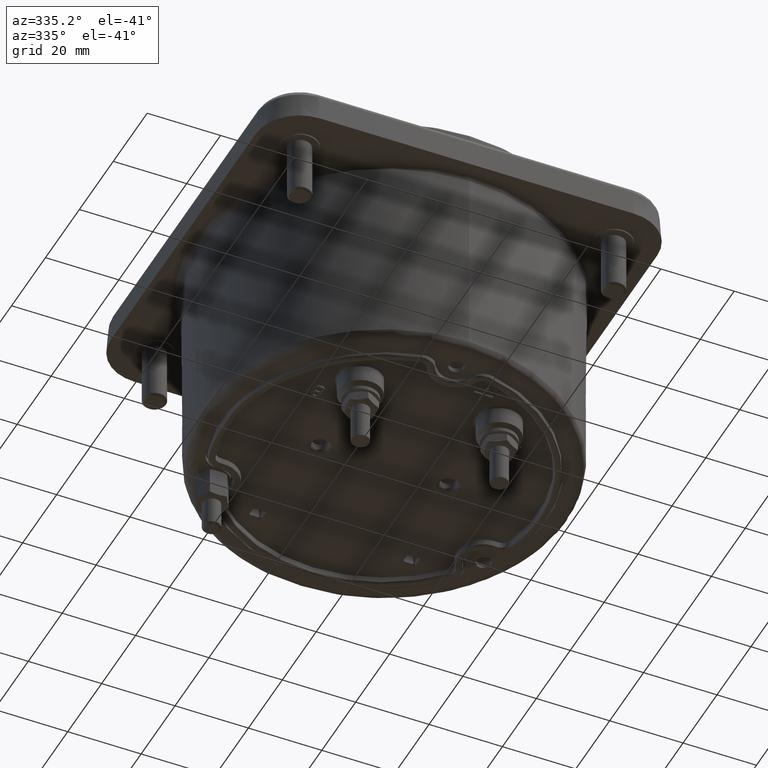
[diagram: clean part render]
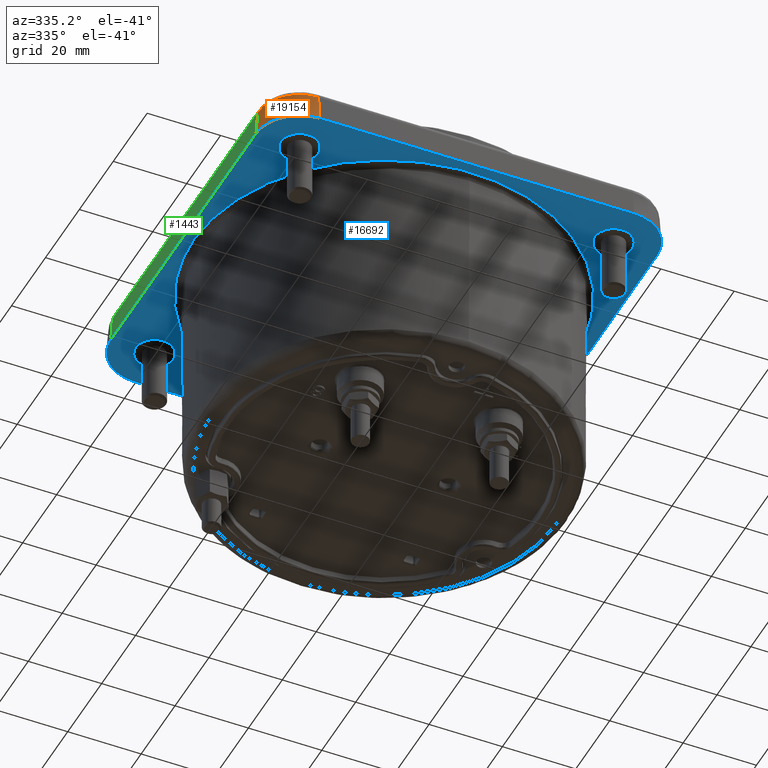
[diagram: same view with three faces highlighted in distinct colors, each labeled with its STEP entity id]
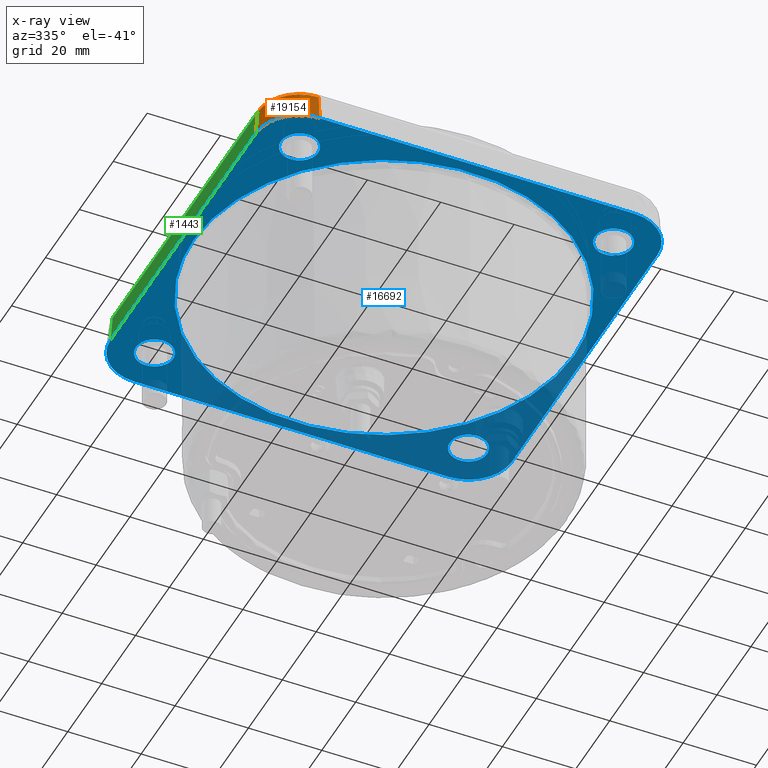
[diagram: x-ray of the same camera — body ghosted, the three highlighted faces saturated]
A machine part, auxiliary view with three faces highlighted in distinct colors.
The next image is the same camera in x-ray (body ghosted, the three faces saturated) — at least one of them is partly hidden behind the body in this view.
Their STEP definitions:

[orange] entity #19154 — the highlighted conical surface has half-angle 4 deg.
#430 = CIRCLE ( 'NONE', #16518, 0.4464672283284528143 ) ;
#493 = DIRECTION ( 'NONE',  ( 0.000000000000000000, 0.000000000000000000, -1.000000000000000000 ) ) ;
#980 = VECTOR ( 'NONE', #9310, 39.37007874015748854 ) ;
#2154 = CARTESIAN_POINT ( 'NONE',  ( -2.153543305989007894, -1.687007875265127854, 2.070110236220472189 ) ) ;
#2620 = CARTESIAN_POINT ( 'NONE',  ( -2.153543305987531298, -1.687007875416897562, 2.070110236241590407 ) ) ;
#2963 = CONICAL_SURFACE ( 'NONE', #10615, 0.4665354330708661457, 0.06981316999999953588 ) ;
#3104 = ORIENTED_EDGE ( 'NONE', *, *, #13460, .F. ) ;
#4126 = EDGE_CURVE ( 'NONE', #13218, #7050, #17322, .T. ) ;
#4483 = CARTESIAN_POINT ( 'NONE',  ( -1.687007872918141693, -1.687007875113358368, 2.357098934942082558 ) ) ;
#4894 = ORIENTED_EDGE ( 'NONE', *, *, #13801, .T. ) ;
#5422 = DIRECTION ( 'NONE',  ( -1.000000000000000000, 0.000000000000000000, 0.000000000000000000 ) ) ;
#5802 = DIRECTION ( 'NONE',  ( 0.06975647374412530244, 0.000000000000000000, 0.9975640502598241977 ) ) ;
#6881 = EDGE_CURVE ( 'NONE', #16478, #10621, #430, .T. ) ;
#7050 = VERTEX_POINT ( 'NONE', #2154 ) ;
#7875 = AXIS2_PLACEMENT_3D ( 'NONE', #20991, #17705, #10652 ) ;
#8686 = FACE_OUTER_BOUND ( 'NONE', #16258, .T. ) ;
#9310 = DIRECTION ( 'NONE',  ( -4.538536330175089566E-11, 0.06975647366454637566, 0.9975640502653888575 ) ) ;
#10615 = AXIS2_PLACEMENT_3D ( 'NONE', #20428, #493, #5422 ) ;
#10621 = VERTEX_POINT ( 'NONE', #15316 ) ;
#10652 = DIRECTION ( 'NONE',  ( -1.000000000000000000, 0.000000000000000000, 0.000000000000000000 ) ) ;
#11122 = DIRECTION ( 'NONE',  ( 0.000000000000000000, 0.000000000000000000, -1.000000000000000000 ) ) ;
#12692 = ORIENTED_EDGE ( 'NONE', *, *, #4126, .F. ) ;
#12912 = LINE ( 'NONE', #15889, #980 ) ;
#13019 = CARTESIAN_POINT ( 'NONE',  ( -1.687007872766371985, -2.153543307086614345, 2.070110236220472189 ) ) ;
#13218 = VERTEX_POINT ( 'NONE', #13019 ) ;
#13460 = EDGE_CURVE ( 'NONE', #7050, #10621, #20707, .T. ) ;
#13801 = EDGE_CURVE ( 'NONE', #13218, #16478, #12912, .T. ) ;
#14308 = CARTESIAN_POINT ( 'NONE',  ( -1.687007872627659388, -2.133475103427692865, 2.357098934979472649 ) ) ;
#15316 = CARTESIAN_POINT ( 'NONE',  ( -2.133475101229425075, -1.687007875410368118, 2.357098934940882184 ) ) ;
#15612 = ORIENTED_EDGE ( 'NONE', *, *, #6881, .T. ) ;
#15747 = DIRECTION ( 'NONE',  ( 6.506258816232933613E-10, -1.000000000000000000, -1.223761933834266947E-15 ) ) ;
#15889 = CARTESIAN_POINT ( 'NONE',  ( -1.687007872614602277, -2.153543308184224347, 2.070110236220472189 ) ) ;
#16258 = EDGE_LOOP ( 'NONE', ( #3104, #12692, #4894, #15612 ) ) ;
#16478 = VERTEX_POINT ( 'NONE', #14308 ) ;
#16518 = AXIS2_PLACEMENT_3D ( 'NONE', #4483, #11122, #15747 ) ;
#17322 = CIRCLE ( 'NONE', #7875, 0.4665354330708661457 ) ;
#17705 = DIRECTION ( 'NONE',  ( 0.000000000000000000, 0.000000000000000000, -1.000000000000000000 ) ) ;
#18432 = VECTOR ( 'NONE', #5802, 39.37007874015748854 ) ;
#19154 = ADVANCED_FACE ( 'NONE', ( #8686 ), #2963, .T. ) ;
#20428 = CARTESIAN_POINT ( 'NONE',  ( -1.687007872918141693, -1.687007875113358368, 2.070110236220472189 ) ) ;
#20707 = LINE ( 'NONE', #2620, #18432 ) ;
#20991 = CARTESIAN_POINT ( 'NONE',  ( -1.687007872918141693, -1.687007875113358368, 2.070110236220472189 ) ) ;

[blue] entity #16692 — the highlighted planar face has unit normal (0, 0, -1).
#49 = CARTESIAN_POINT ( 'NONE',  ( -2.008598685417853691, 0.3726887875046700493, 2.070110236220472189 ) ) ;
#149 = CARTESIAN_POINT ( 'NONE',  ( -1.896255371955353874, 0.7599903085829402549, 2.070110236220472189 ) ) ;
#249 = CARTESIAN_POINT ( 'NONE',  ( 2.026184992767981807, 0.2639833657178906057, 2.070110236220472189 ) ) ;
#341 = CARTESIAN_POINT ( 'NONE',  ( 1.896255371954573610, -0.7599903085844089690, 2.070110236220472189 ) ) ;
#469 = CARTESIAN_POINT ( 'NONE',  ( 1.711088321330193063, 1.116040419668461237, 2.070110236220472189 ) ) ;
#582 = CARTESIAN_POINT ( 'NONE',  ( 2.008964654954902507, 0.3707111310162305440, 2.070110236220472633 ) ) ;
#617 = ORIENTED_EDGE ( 'NONE', *, *, #10479, .T. ) ;
#644 = CARTESIAN_POINT ( 'NONE',  ( -0.4285437248690475709, -1.997551800392993959, 2.070110236220472189 ) ) ;
#668 = DIRECTION ( 'NONE',  ( 0.000000000000000000, 0.000000000000000000, 1.000000000000000000 ) ) ;
#728 = CARTESIAN_POINT ( 'NONE',  ( -1.885826770557212706, -1.685039371175066858, 2.070110236220472189 ) ) ;
#761 = CARTESIAN_POINT ( 'NONE',  ( -1.718104688078356812, -1.105221622687907246, 2.070110236220472189 ) ) ;
#791 = CARTESIAN_POINT ( 'NONE',  ( -0.3678886186264974101, 2.009483410134052850, 2.070110236220472189 ) ) ;
#872 = CARTESIAN_POINT ( 'NONE',  ( -1.900241300414105661, -0.7499681759423524330, 2.070110236220472189 ) ) ;
#940 = CIRCLE ( 'NONE', #1285, 0.2007874015748031815 ) ;
#981 = CARTESIAN_POINT ( 'NONE',  ( -0.8077928446486398739, -1.876533583577645992, 2.070110236220472189 ) ) ;
#1092 = CARTESIAN_POINT ( 'NONE',  ( -1.060108662982536920, -1.747656180641109946, 2.070110236220472189 ) ) ;
#1185 = CARTESIAN_POINT ( 'NONE',  ( 1.130765448197810219, 1.701402250908114588, 2.070110236220472189 ) ) ;
#1285 = AXIS2_PLACEMENT_3D ( 'NONE', #10965, #17686, #13041 ) ;
#1375 = CARTESIAN_POINT ( 'NONE',  ( -1.092514872299909623, 1.726242185401335227, 2.070110236220472189 ) ) ;
#1408 = CARTESIAN_POINT ( 'NONE',  ( 0.7499681759424581262, -1.900241300414075463, 2.070110236220472189 ) ) ;
#1481 = CARTESIAN_POINT ( 'NONE',  ( -1.110653324257439234, 1.714590005561490216, 2.070110236220472189 ) ) ;
#1483 = AXIS2_PLACEMENT_3D ( 'NONE', #19113, #15813, #16023 ) ;
#1493 = CIRCLE ( 'NONE', #14417, 0.2007874015748031815 ) ;
#1612 = DIRECTION ( 'NONE',  ( 0.000000000000000000, 0.000000000000000000, 1.000000000000000000 ) ) ;
#1660 = CARTESIAN_POINT ( 'NONE',  ( 1.687007875265125856, -2.153543305988999901, 2.070110236220472189 ) ) ;
#1801 = CARTESIAN_POINT ( 'NONE',  ( -1.923832779440136198, 0.6903791625160491385, 2.070110236220472189 ) ) ;
#1812 = CARTESIAN_POINT ( 'NONE',  ( -0.7442685582425531132, 1.902480896312931602, 2.070110236220472189 ) ) ;
#1991 = CARTESIAN_POINT ( 'NONE',  ( 1.494393066037198459, -1.394678649433133799, 2.070110236220472633 ) ) ;
#2006 = CARTESIAN_POINT ( 'NONE',  ( 1.900241300414043266, 0.7499681759425160799, 2.070110236220472189 ) ) ;
#2059 = ORIENTED_EDGE ( 'NONE', *, *, #21451, .T. ) ;
#2097 = CARTESIAN_POINT ( 'NONE',  ( 1.923832779438609863, -0.6903791625240016661, 2.070110236220472189 ) ) ;
#2154 = CARTESIAN_POINT ( 'NONE',  ( -2.153543305989007894, -1.687007875265127854, 2.070110236220472189 ) ) ;
#2205 = CARTESIAN_POINT ( 'NONE',  ( 1.639883210596662311, -1.219175707345041992, 2.070110236220472189 ) ) ;
#2317 = CARTESIAN_POINT ( 'NONE',  ( 1.984978912902296111, -0.4849692473790852554, 2.070110236220471744 ) ) ;
#2385 = CARTESIAN_POINT ( 'NONE',  ( 0.3582853737933025529, -2.011224428577075951, 2.070110236220471744 ) ) ;
#2420 = CARTESIAN_POINT ( 'NONE',  ( 1.852268121428690906, -0.8629098314627251520, 2.070110236220472633 ) ) ;
#2500 = CARTESIAN_POINT ( 'NONE',  ( -1.831287150513315254, -0.9100311596427431704, 2.070110236220472189 ) ) ;
#2548 = LINE ( 'NONE', #7370, #10795 ) ;
#2610 = CARTESIAN_POINT ( 'NONE',  ( -0.9710378116248836733, -1.799681934347626466, 2.070110236220472189 ) ) ;
#2684 = CARTESIAN_POINT ( 'NONE',  ( 1.484251967407606454, 1.685039371175066858, 2.070110236220472189 ) ) ;
#2724 = CARTESIAN_POINT ( 'NONE',  ( -1.996722619072802463, -0.4368693160643514761, 2.070110236220472189 ) ) ;
#2820 = CARTESIAN_POINT ( 'NONE',  ( 0.9710378116155181649, 1.799681934351596846, 2.070110236220472633 ) ) ;
#2839 = CARTESIAN_POINT ( 'NONE',  ( -0.4001849927168594223, -2.003332604841471021, 2.070110236220472189 ) ) ;
#3015 = CARTESIAN_POINT ( 'NONE',  ( -1.701402250908744973, 1.130765448196786371, 2.070110236220473077 ) ) ;
#3023 = CARTESIAN_POINT ( 'NONE',  ( 1.219175707342406101, 1.639883210600492802, 2.070110236220472189 ) ) ;
#3062 = ORIENTED_EDGE ( 'NONE', *, *, #11301, .T. ) ;
#3145 = CARTESIAN_POINT ( 'NONE',  ( 1.105221622687248217, -1.718104688078582853, 2.070110236220472189 ) ) ;
#3159 = CARTESIAN_POINT ( 'NONE',  ( 0.1249387674007510635, 2.042880192836613595, 2.070110236220472189 ) ) ;
#3231 = CARTESIAN_POINT ( 'NONE',  ( -2.007446990985487734, 0.3788520813345559457, 2.070110236220471744 ) ) ;
#3242 = CARTESIAN_POINT ( 'NONE',  ( 0.7559844347400698217, 1.897855857671748803, 2.070110236220472633 ) ) ;
#3344 = CARTESIAN_POINT ( 'NONE',  ( -0.6978737373666035193, 1.920113334218456425, 2.070110236220472633 ) ) ;
#3362 = FACE_OUTER_BOUND ( 'NONE', #15457, .T. ) ;
#3432 = CARTESIAN_POINT ( 'NONE',  ( -1.105221622685764959, 1.718104688079279185, 2.070110236220473077 ) ) ;
#3489 = CARTESIAN_POINT ( 'NONE',  ( -2.018101943887906646, -0.3179150791612647131, 2.070110236220472189 ) ) ;
#3493 = DIRECTION ( 'NONE',  ( 0.000000000000000000, 0.000000000000000000, -1.000000000000000000 ) ) ;
#3539 = CARTESIAN_POINT ( 'NONE',  ( 1.714590005561250186, 1.110653324258058738, 2.070110236220471744 ) ) ;
#3645 = CARTESIAN_POINT ( 'NONE',  ( 1.974016218242611531, 0.5332552053223664768, 2.070110236220472189 ) ) ;
#3742 = CARTESIAN_POINT ( 'NONE',  ( 2.042881469688272222, 1.329156158074610405E-09, 2.070110236220472189 ) ) ;
#3756 = CARTESIAN_POINT ( 'NONE',  ( 1.742263465832802227, 1.066970251324247831, 2.070110236220472189 ) ) ;
#3851 = CARTESIAN_POINT ( 'NONE',  ( 1.675499044561318929, -1.169031679860992323, 2.070110236220473077 ) ) ;
#3866 = CARTESIAN_POINT ( 'NONE',  ( 1.939430170090475691, 0.6433872527954787035, 2.070110236220472189 ) ) ;
#3963 = CARTESIAN_POINT ( 'NONE',  ( 1.799681934345674028, -0.9710378116287806671, 2.070110236220472189 ) ) ;
#3988 = FACE_BOUND ( 'NONE', #13815, .T. ) ;
#4002 = CARTESIAN_POINT ( 'NONE',  ( -2.153543305989007894, -3.543307086614173151, 2.070110236220472189 ) ) ;
#4023 = DIRECTION ( 'NONE',  ( -1.000000000000000000, 0.000000000000000000, 0.000000000000000000 ) ) ;
#4034 = CARTESIAN_POINT ( 'NONE',  ( -2.010010018804857967, -0.3650084123850552142, 2.070110236220472189 ) ) ;
#4055 = ORIENTED_EDGE ( 'NONE', *, *, #5105, .T. ) ;
#4126 = EDGE_CURVE ( 'NONE', #13218, #7050, #17322, .T. ) ;
#4140 = CARTESIAN_POINT ( 'NONE',  ( 0.3698088781557154481, -2.009130903961321213, 2.070110236220472189 ) ) ;
#4208 = VECTOR ( 'NONE', #4023, 39.37007874015748143 ) ;
#4257 = CARTESIAN_POINT ( 'NONE',  ( -1.119690164145946687, -1.708702197063385553, 2.070110236220472189 ) ) ;
#4361 = CARTESIAN_POINT ( 'NONE',  ( -1.130765448198850942, -1.701402250907160463, 2.070110236220472633 ) ) ;
#4480 = CARTESIAN_POINT ( 'NONE',  ( -2.008964654954926488, -0.3707111310161385065, 2.070110236220472189 ) ) ;
#4525 = CARTESIAN_POINT ( 'NONE',  ( 2.042881469688272222, 1.329156158074610405E-09, 2.070110236220472189 ) ) ;
#4565 = CARTESIAN_POINT ( 'NONE',  ( 1.121571604574870262, 1.707467909705373987, 2.070110236220473077 ) ) ;
#4682 = CARTESIAN_POINT ( 'NONE',  ( 0.7249720948608480153, -1.909948963333672145, 2.070110236220472189 ) ) ;
#4694 = CARTESIAN_POINT ( 'NONE',  ( 0.2488762166883521365, 2.031511808131441388, 2.070110236220473077 ) ) ;
#4759 = CARTESIAN_POINT ( 'NONE',  ( -1.564954769524254052, 1.316454797502487839, 2.070110236220473077 ) ) ;
#4789 = CARTESIAN_POINT ( 'NONE',  ( 1.116040419668381967, -1.711088321330239914, 2.070110236220472189 ) ) ;
#4869 = CARTESIAN_POINT ( 'NONE',  ( -1.893845591454620836, 0.7659944184694260638, 2.070110236220473077 ) ) ;
#4899 = CARTESIAN_POINT ( 'NONE',  ( 0.7384850524081502110, -1.904740289654617058, 2.070110236220472633 ) ) ;
#4915 = CARTESIAN_POINT ( 'NONE',  ( 0.3737647796329262584, 2.008398766474830843, 2.070110236220473077 ) ) ;
#4989 = AXIS2_PLACEMENT_3D ( 'NONE', #15632, #20700, #18508 ) ;
#4998 = DIRECTION ( 'NONE',  ( 1.000000000000000000, 0.000000000000000000, 0.000000000000000000 ) ) ;
#5086 = CARTESIAN_POINT ( 'NONE',  ( -1.747656180646432800, 1.060108662972744753, 2.070110236220473077 ) ) ;
#5105 = EDGE_CURVE ( 'NONE', #5115, #6227, #8655, .T. ) ;
#5115 = VERTEX_POINT ( 'NONE', #7357 ) ;
#5389 = CARTESIAN_POINT ( 'NONE',  ( 2.006096597241529889, -0.3859691339164213475, 2.070110236220472189 ) ) ;
#5402 = CARTESIAN_POINT ( 'NONE',  ( 2.013594818917836093, 0.3448347633410340785, 2.070110236220473077 ) ) ;
#5416 = FACE_BOUND ( 'NONE', #16768, .T. ) ;
#5467 = CARTESIAN_POINT ( 'NONE',  ( -2.042881469647618076, -0.06247283608517428810, 2.070110236220472633 ) ) ;
#5479 = CARTESIAN_POINT ( 'NONE',  ( -1.685039368982409691, -1.685039371175066858, 2.070110236220472189 ) ) ;
#5516 = CARTESIAN_POINT ( 'NONE',  ( 1.902480896313037517, 0.7442685582423163027, 2.070110236220472189 ) ) ;
#5529 = DIRECTION ( 'NONE',  ( -1.000000000000000000, 0.000000000000000000, 0.000000000000000000 ) ) ;
#5578 = CARTESIAN_POINT ( 'NONE',  ( -2.038618325398769304, -0.1557935806420024105, 2.070110236220472633 ) ) ;
#5607 = AXIS2_PLACEMENT_3D ( 'NONE', #18623, #3493, #13540 ) ;
#5612 = CARTESIAN_POINT ( 'NONE',  ( 1.564954769513941635, -1.316454797514395869, 2.070110236220472189 ) ) ;
#5654 = DIRECTION ( 'NONE',  ( 0.000000000000000000, 0.000000000000000000, -1.000000000000000000 ) ) ;
#5687 = CARTESIAN_POINT ( 'NONE',  ( 0.06246938569206661462, -2.042882108114909112, 2.070110236220472633 ) ) ;
#5700 = CARTESIAN_POINT ( 'NONE',  ( -1.484251969600267618, 1.685039368982401697, 2.070110236220472189 ) ) ;
#5747 = PLANE ( 'NONE',  #18910 ) ;
#5791 = CARTESIAN_POINT ( 'NONE',  ( -0.2488762166930676978, -2.031511808129802699, 2.070110236220472633 ) ) ;
#5815 = LINE ( 'NONE', #12572, #12304 ) ;
#5818 = VERTEX_POINT ( 'NONE', #2684 ) ;
#5837 = DIRECTION ( 'NONE',  ( 1.000000000000000000, -0.000000000000000000, -0.000000000000000000 ) ) ;
#5896 = CARTESIAN_POINT ( 'NONE',  ( -1.909948963333746308, -0.7249720948604549964, 2.070110236220472189 ) ) ;
#5947 = CARTESIAN_POINT ( 'NONE',  ( -0.2639833657265798772, 2.026184992766906223, 2.070110236220472189 ) ) ;
#6016 = CARTESIAN_POINT ( 'NONE',  ( -1.121571604575167358, -1.707467909705093767, 2.070110236220472633 ) ) ;
#6068 = ORIENTED_EDGE ( 'NONE', *, *, #14568, .T. ) ;
#6124 = CARTESIAN_POINT ( 'NONE',  ( -0.3859691339166563817, -2.006096597241381563, 2.070110236220473077 ) ) ;
#6139 = CARTESIAN_POINT ( 'NONE',  ( 0.3859691339169316060, 2.006096597241254997, 2.070110236220472189 ) ) ;
#6215 = CARTESIAN_POINT ( 'NONE',  ( 1.687007872918133922, 1.687007875113362143, 2.070110236220472189 ) ) ;
#6227 = VERTEX_POINT ( 'NONE', #4525 ) ;
#6330 = CARTESIAN_POINT ( 'NONE',  ( 0.5332552053338290854, -1.974016218238910048, 2.070110236220473077 ) ) ;
#6345 = CARTESIAN_POINT ( 'NONE',  ( 0.3788520813356723305, 2.007446990985192414, 2.070110236220472189 ) ) ;
#6432 = CARTESIAN_POINT ( 'NONE',  ( 1.066970251325741303, -1.742263465831821456, 2.070110236220472189 ) ) ;
#6491 = EDGE_CURVE ( 'NONE', #20010, #20380, #1493, .T. ) ;
#6515 = EDGE_CURVE ( 'NONE', #11952, #17988, #5815, .T. ) ;
#6541 = CARTESIAN_POINT ( 'NONE',  ( 0.4368693160652958873, -1.996722619072617277, 2.070110236220473077 ) ) ;
#6556 = CARTESIAN_POINT ( 'NONE',  ( 0.3757999609763399418, 2.008018959206292475, 2.070110236220472633 ) ) ;
#6622 = CARTESIAN_POINT ( 'NONE',  ( -1.344819891864121653, 1.544248719458508168, 2.070110236220472189 ) ) ;
#6732 = CARTESIAN_POINT ( 'NONE',  ( -2.042881469769566749, 0.1249596658312170094, 2.070110236220472189 ) ) ;
#6816 = EDGE_CURVE ( 'NONE', #11655, #12855, #9521, .T. ) ;
#6836 = CARTESIAN_POINT ( 'NONE',  ( -1.799681934356939239, 0.9710378116077497124, 2.070110236220472189 ) ) ;
#6843 = CARTESIAN_POINT ( 'NONE',  ( 0.7799711020587158927, 1.888159406803889162, 2.070110236220471744 ) ) ;
#6924 = ORIENTED_EDGE ( 'NONE', *, *, #9453, .T. ) ;
#6933 = CARTESIAN_POINT ( 'NONE',  ( 2.011224428577082612, 0.3582853737923294424, 2.070110236220472189 ) ) ;
#7050 = VERTEX_POINT ( 'NONE', #2154 ) ;
#7054 = FACE_BOUND ( 'NONE', #18159, .T. ) ;
#7262 = CARTESIAN_POINT ( 'NONE',  ( 1.900968610835624517, 0.7481225039804052512, 2.070110236220472189 ) ) ;
#7287 = DIRECTION ( 'NONE',  ( -1.000000000000000000, 0.000000000000000000, 0.000000000000000000 ) ) ;
#7323 = CARTESIAN_POINT ( 'NONE',  ( -0.8629098314598024899, -1.852268121430152847, 2.070110236220472189 ) ) ;
#7346 = DIRECTION ( 'NONE',  ( 1.000000000000000000, 0.000000000000000000, 0.000000000000000000 ) ) ;
#7357 = CARTESIAN_POINT ( 'NONE',  ( -2.042881469688264673, -1.329153877629970610E-09, 2.070110236220472189 ) ) ;
#7370 = CARTESIAN_POINT ( 'NONE',  ( 2.305380921159354548E-09, 2.153543305989007894, 2.070110236220472189 ) ) ;
#7430 = CARTESIAN_POINT ( 'NONE',  ( -1.394678649436074336, -1.494393066035612838, 2.070110236220473077 ) ) ;
#7461 = CARTESIAN_POINT ( 'NONE',  ( -0.3707111310161931850, 2.008964654954908724, 2.070110236220472189 ) ) ;
#7501 = CARTESIAN_POINT ( 'NONE',  ( -1.885826772749874092, 1.685039368982401697, 2.070110236220472189 ) ) ;
#7542 = CARTESIAN_POINT ( 'NONE',  ( -2.009130884087158009, -0.3698089855593023056, 2.070110236220472633 ) ) ;
#7618 = VERTEX_POINT ( 'NONE', #14148 ) ;
#7646 = CARTESIAN_POINT ( 'NONE',  ( -0.3726887335863753314, -2.008598695396127454, 2.070110236220472189 ) ) ;
#7760 = CARTESIAN_POINT ( 'NONE',  ( -0.7599903085841351880, -1.896255371954701952, 2.070110236220472633 ) ) ;
#7845 = CARTESIAN_POINT ( 'NONE',  ( 0.8077928446445483690, 1.876533583579392150, 2.070110236220472189 ) ) ;
#7875 = AXIS2_PLACEMENT_3D ( 'NONE', #20991, #17705, #10652 ) ;
#7978 = CARTESIAN_POINT ( 'NONE',  ( 0.4285437248700156299, 1.997551800392516785, 2.070110236220472633 ) ) ;
#8047 = AXIS2_PLACEMENT_3D ( 'NONE', #9578, #19585, #16280 ) ;
#8053 = CARTESIAN_POINT ( 'NONE',  ( 1.143583545518305877, 1.692844864900662660, 2.070110236220472189 ) ) ;
#8077 = CARTESIAN_POINT ( 'NONE',  ( 0.8161558320137728417, -1.874038972725468932, 2.070110236220472189 ) ) ;
#8150 = CARTESIAN_POINT ( 'NONE',  ( -1.897855857671926882, 0.7559844347397906006, 2.070110236220472189 ) ) ;
#8192 = CARTESIAN_POINT ( 'NONE',  ( 0.4849692473822045380, 1.984978912900581927, 2.070110236220472189 ) ) ;
#8272 = CARTESIAN_POINT ( 'NONE',  ( 1.885826770557212706, 1.685039371175066858, 2.070110236220472189 ) ) ;
#8360 = CARTESIAN_POINT ( 'NONE',  ( -2.031513085348501502, 0.2488693151521731151, 2.070110236220472633 ) ) ;
#8371 = CARTESIAN_POINT ( 'NONE',  ( -0.6433872527980785128, 1.939430170089417649, 2.070110236220472189 ) ) ;
#8413 = ORIENTED_EDGE ( 'NONE', *, *, #13470, .T. ) ;
#8467 = CARTESIAN_POINT ( 'NONE',  ( -1.066970251320402019, 1.742263465834327452, 2.070110236220472189 ) ) ;
#8649 = CARTESIAN_POINT ( 'NONE',  ( 1.692844864899470503, -1.143583545519123446, 2.070110236220472189 ) ) ;
#8655 = B_SPLINE_CURVE_WITH_KNOTS ( 'NONE', 3,
 ( #20465, #5467, #5578, #12215, #3489, #10144, #14196, #4034, #10679, #7542, #4480, #2724, #14088, #20916, #10898, #5896, #11120, #9382, #17735, #872, #9156, #2500, #12440, #10786, #15744, #761, #12546, #20697, #17398, #11010, #17620, #7430, #17849, #13981, #19269, #15854, #4361, #16072, #6016, #4257, #1092, #2610, #7323, #981, #12665, #15630, #7760, #19044, #9270, #14425, #21138, #20799, #644, #2839, #6124, #15961, #19383, #17507, #7646, #5791, #14304, #5687, #21024, #12326, #12773, #19497, #2385, #9044, #19159, #4140, #11227, #6541, #6330, #13194, #11646, #4682, #4899, #18158, #11541, #1408, #8077, #9492, #14957, #6432, #18269, #3145, #16608, #18371, #4789, #16996, #10604, #1991, #5612, #2205, #3851, #8649, #8973, #20730, #12023, #13685, #18758, #3963, #2420, #9076, #19079, #12134, #341, #17321, #15663, #2097, #17429, #2317, #15782, #15556, #5389, #10713, #10498, #8863, #17214, #17101, #18650, #3742 ),
 .UNSPECIFIED., .F., .F.,
 ( 4, 1, 1, 1, 1, 1, 1, 2, 2, 1, 1, 1, 1, 1, 2, 2, 1, 1, 1, 1, 1, 2, 2, 2, 1, 1, 1, 1, 1, 2, 2, 1, 1, 1, 1, 1, 2, 2, 1, 1, 1, 1, 1, 1, 2, 2, 2, 1, 1, 1, 1, 1, 1, 2, 2, 1, 1, 1, 1, 1, 2, 2, 1, 1, 1, 1, 1, 2, 2, 2, 1, 1, 1, 1, 1, 2, 2, 1, 1, 1, 1, 1, 2, 2, 1, 1, 1, 1, 1, 1, 2, 2, 4 ),
 ( 0.000000000000000000, 0.01562499999999998959, 0.02343749999999998612, 0.02734374999999998265, 0.02929687499999998612, 0.03027343749999997918, 0.03076171874999997224, 0.03100585937499996877, 0.03124999999999996531, 0.04687499999999943101, 0.05468749999999916039, 0.05859374999999904937, 0.06054687499999899386, 0.06152343749999896610, 0.06201171874999895223, 0.06249999999999893835, 0.07812499999999827915, 0.08593749999999797384, 0.08984374999999782119, 0.09179687499999771017, 0.09277343749999765465, 0.09326171874999764078, 0.09374999999999762690, 0.1249999999999960865, 0.1406249999999953371, 0.1484374999999949485, 0.1523437499999947542, 0.1542968749999946709, 0.1552734374999946709, 0.1557617187499946709, 0.1562499999999946709, 0.1718749999999949762, 0.1796874999999951428, 0.1835937499999952260, 0.1855468749999952538, 0.1865234374999952816, 0.1870117187499952816, 0.1874999999999952816, 0.2031249999999949485, 0.2109374999999948097, 0.2148437499999947542, 0.2167968749999947264, 0.2177734374999947264, 0.2182617187499947264, 0.2185058593749947264, 0.2187499999999947264, 0.2499999999999947264, 0.2656249999999947264, 0.2734374999999947264, 0.2773437499999947264, 0.2792968749999947264, 0.2802734374999947264, 0.2807617187499947264, 0.2810058593749947264, 0.2812499999999947264, 0.2968749999999952260, 0.3046874999999955036, 0.3085937499999956701, 0.3105468749999957256, 0.3115234374999957812, 0.3120117187499957812, 0.3124999999999957812, 0.3281249999999961142, 0.3359374999999962808, 0.3398437499999963363, 0.3417968749999963918, 0.3427734374999963918, 0.3432617187499963918, 0.3437499999999963918, 0.3749999999999966138, 0.3906249999999967248, 0.3984374999999967804, 0.4023437499999967804, 0.4042968749999967804, 0.4052734374999967804, 0.4057617187499967804, 0.4062499999999967804, 0.4218749999999971134, 0.4296874999999972800, 0.4335937499999973910, 0.4355468749999974465, 0.4365234374999975020, 0.4370117187499975020, 0.4374999999999975020, 0.4531249999999980571, 0.4609374999999982792, 0.4648437499999983902, 0.4667968749999984457, 0.4677734374999984457, 0.4682617187499984457, 0.4685058593749984457, 0.4687499999999984457, 0.5000000000000000000 ),
 .UNSPECIFIED. ) ;
#8662 = CARTESIAN_POINT ( 'NONE',  ( 1.874038972726748797, 0.8161558320118241783, 2.070110236220473077 ) ) ;
#8775 = CARTESIAN_POINT ( 'NONE',  ( 2.009483410134108805, 0.3678886186260942881, 2.070110236220472189 ) ) ;
#8787 = DIRECTION ( 'NONE',  ( 0.000000000000000000, 0.000000000000000000, -1.000000000000000000 ) ) ;
#8863 = CARTESIAN_POINT ( 'NONE',  ( 2.008398766474870811, -0.3737647796328446015, 2.070110236220471744 ) ) ;
#8876 = CARTESIAN_POINT ( 'NONE',  ( 1.544248719448939822, 1.344819891870079998, 2.070110236220473077 ) ) ;
#8888 = CARTESIAN_POINT ( 'NONE',  ( -0.7499681759426658489, 1.900241300413973988, 2.070110236220472189 ) ) ;
#8973 = CARTESIAN_POINT ( 'NONE',  ( 1.701402250907502856, -1.130765448198228329, 2.070110236220472189 ) ) ;
#9044 = CARTESIAN_POINT ( 'NONE',  ( 0.3650080408949836763, -2.010010087546085789, 2.070110236220471744 ) ) ;
#9073 = CARTESIAN_POINT ( 'NONE',  ( -0.5332552053258344804, 1.974016218241201770, 2.070110236220472633 ) ) ;
#9076 = CARTESIAN_POINT ( 'NONE',  ( 1.876533583576798003, -0.8077928446503455095, 2.070110236220472189 ) ) ;
#9156 = CARTESIAN_POINT ( 'NONE',  ( -1.874038972724415553, -0.8161558320169089997, 2.070110236220472189 ) ) ;
#9251 = CIRCLE ( 'NONE', #18724, 0.2007874015748031815 ) ;
#9270 = CARTESIAN_POINT ( 'NONE',  ( -0.7538986943150615128, -1.898685244963399299, 2.070110236220472189 ) ) ;
#9280 = DIRECTION ( 'NONE',  ( 0.000000000000000000, 0.000000000000000000, 1.000000000000000000 ) ) ;
#9382 = CARTESIAN_POINT ( 'NONE',  ( -1.902480896312791936, -0.7442685582430005331, 2.070110236220472633 ) ) ;
#9447 = CARTESIAN_POINT ( 'NONE',  ( 2.153543307086614345, -1.687007872766364214, 2.070110236220472189 ) ) ;
#9453 = EDGE_CURVE ( 'NONE', #15947, #7618, #2548, .T. ) ;
#9465 = ORIENTED_EDGE ( 'NONE', *, *, #6816, .T. ) ;
#9474 = CARTESIAN_POINT ( 'NONE',  ( 0.8629098314527804403, 1.852268121433132686, 2.070110236220472189 ) ) ;
#9481 = CIRCLE ( 'NONE', #12263, 0.4665354330708661457 ) ;
#9492 = CARTESIAN_POINT ( 'NONE',  ( 0.9100311596372501199, -1.831287150515155115, 2.070110236220472189 ) ) ;
#9521 = CIRCLE ( 'NONE', #4989, 0.2007874015748031815 ) ;
#9578 = CARTESIAN_POINT ( 'NONE',  ( 1.685039368982409691, 1.685039371175066858, 2.070110236220472189 ) ) ;
#9580 = CARTESIAN_POINT ( 'NONE',  ( -1.685039368982409691, -1.685039371175066858, 2.070110236220472189 ) ) ;
#9620 = CARTESIAN_POINT ( 'NONE',  ( -2.153543307086614345, 1.687007872766370209, 2.070110236220472189 ) ) ;
#9667 = CARTESIAN_POINT ( 'NONE',  ( -2.006096597241845636, 0.3859691339147403033, 2.070110236220472189 ) ) ;
#9688 = CARTESIAN_POINT ( 'NONE',  ( -1.685039371175070855, 1.685039368982401697, 2.070110236220472189 ) ) ;
#9878 = CARTESIAN_POINT ( 'NONE',  ( -1.707467909705557174, 1.121571604574564729, 2.070110236220472189 ) ) ;
#10085 = CARTESIAN_POINT ( 'NONE',  ( -1.675499044565825546, 1.169031679855782269, 2.070110236220472189 ) ) ;
#10119 = EDGE_CURVE ( 'NONE', #12656, #13218, #12429, .T. ) ;
#10144 = CARTESIAN_POINT ( 'NONE',  ( -2.013594557046480382, -0.3448361785432085824, 2.070110236220472189 ) ) ;
#10232 = EDGE_CURVE ( 'NONE', #5818, #18971, #17493, .T. ) ;
#10254 = CARTESIAN_POINT ( 'NONE',  ( 1.484251969600267618, -1.685039368982401697, 2.070110236220472189 ) ) ;
#10294 = CARTESIAN_POINT ( 'NONE',  ( 1.909948963334545891, 0.7249720948581591662, 2.070110236220472189 ) ) ;
#10401 = CARTESIAN_POINT ( 'NONE',  ( 2.042881469688272222, 1.329156158074610405E-09, 2.070110236220472189 ) ) ;
#10479 = EDGE_CURVE ( 'NONE', #17988, #12656, #17161, .T. ) ;
#10498 = CARTESIAN_POINT ( 'NONE',  ( 2.008018959206372855, -0.3757999609761855098, 2.070110236220472189 ) ) ;
#10513 = CARTESIAN_POINT ( 'NONE',  ( 1.394678649431126738, 1.494393066040117679, 2.070110236220472189 ) ) ;
#10604 = CARTESIAN_POINT ( 'NONE',  ( 1.344819891875927320, -1.544248719444899720, 2.070110236220473077 ) ) ;
#10652 = DIRECTION ( 'NONE',  ( -1.000000000000000000, 0.000000000000000000, 0.000000000000000000 ) ) ;
#10679 = CARTESIAN_POINT ( 'NONE',  ( -2.009483370619587816, -0.3678888321699896879, 2.070110236220472189 ) ) ;
#10713 = CARTESIAN_POINT ( 'NONE',  ( 2.007446990985332302, -0.3788520813354092631, 2.070110236220471744 ) ) ;
#10786 = CARTESIAN_POINT ( 'NONE',  ( -1.742263465831014102, -1.066970251328139607, 2.070110236220472189 ) ) ;
#10795 = VECTOR ( 'NONE', #5837, 39.37007874015748143 ) ;
#10898 = CARTESIAN_POINT ( 'NONE',  ( -1.920113334217594447, -0.6978737373693809642, 2.070110236220472189 ) ) ;
#10949 = CARTESIAN_POINT ( 'NONE',  ( -0.3179124374555990507, 2.018102432713798411, 2.070110236220472189 ) ) ;
#10965 = CARTESIAN_POINT ( 'NONE',  ( -1.685039371175070855, 1.685039368982401697, 2.070110236220472189 ) ) ;
#11010 = CARTESIAN_POINT ( 'NONE',  ( -1.632717692842140522, -1.235916453041822516, 2.070110236220473077 ) ) ;
#11120 = CARTESIAN_POINT ( 'NONE',  ( -1.904740289654653695, -0.7384850524079445977, 2.070110236220472189 ) ) ;
#11135 = CARTESIAN_POINT ( 'NONE',  ( 0.3726887335864224604, 2.008598695396123013, 2.070110236220472189 ) ) ;
#11227 = CARTESIAN_POINT ( 'NONE',  ( 0.3707111310161312345, -2.008964654954927820, 2.070110236220472189 ) ) ;
#11243 = CARTESIAN_POINT ( 'NONE',  ( 0.6903791625263809850, 1.923832779437304907, 2.070110236220472633 ) ) ;
#11296 = CARTESIAN_POINT ( 'NONE',  ( -2.042881469688264673, -1.329153877629970610E-09, 2.070110236220472189 ) ) ;
#11301 = EDGE_CURVE ( 'NONE', #18343, #11499, #21173, .T. ) ;
#11410 = CARTESIAN_POINT ( 'NONE',  ( 1.119690164146124323, 1.708702197063316053, 2.070110236220473077 ) ) ;
#11462 = EDGE_CURVE ( 'NONE', #7050, #16285, #19232, .T. ) ;
#11499 = VERTEX_POINT ( 'NONE', #728 ) ;
#11541 = CARTESIAN_POINT ( 'NONE',  ( 0.7481225039808152566, -1.900968610835486627, 2.070110236220472633 ) ) ;
#11646 = CARTESIAN_POINT ( 'NONE',  ( 0.6978737373701058289, -1.920113334217454337, 2.070110236220472189 ) ) ;
#11655 = VERTEX_POINT ( 'NONE', #18528 ) ;
#11659 = CARTESIAN_POINT ( 'NONE',  ( -0.06246938569410279141, 2.042882108114094653, 2.070110236220472633 ) ) ;
#11724 = CARTESIAN_POINT ( 'NONE',  ( -1.116040419668409944, 1.711088321330176631, 2.070110236220472189 ) ) ;
#11741 = CIRCLE ( 'NONE', #21582, 0.2007874015748031815 ) ;
#11823 = CARTESIAN_POINT ( 'NONE',  ( 2.018102432714430794, 0.3179124374505328254, 2.070110236220472189 ) ) ;
#11952 = VERTEX_POINT ( 'NONE', #19507 ) ;
#11984 = EDGE_LOOP ( 'NONE', ( #9465, #8413 ) ) ;
#12023 = CARTESIAN_POINT ( 'NONE',  ( 1.707467909705198572, -1.121571604574985948, 2.070110236220472633 ) ) ;
#12040 = CARTESIAN_POINT ( 'NONE',  ( 1.773291169853209226, 1.015356528536791814, 2.070110236220471744 ) ) ;
#12134 = CARTESIAN_POINT ( 'NONE',  ( 1.893845591453264587, -0.7659944184719689186, 2.070110236220472633 ) ) ;
#12148 = CARTESIAN_POINT ( 'NONE',  ( 2.042882108114913109, 0.06246938568748307968, 2.070110236220471744 ) ) ;
#12179 = DIRECTION ( 'NONE',  ( 0.000000000000000000, 1.000000000000000000, 0.000000000000000000 ) ) ;
#12215 = CARTESIAN_POINT ( 'NONE',  ( -2.026184154779658186, -0.2639878943648609755, 2.070110236220473077 ) ) ;
#12263 = AXIS2_PLACEMENT_3D ( 'NONE', #6215, #17940, #14073 ) ;
#12304 = VECTOR ( 'NONE', #20936, 39.37007874015748143 ) ;
#12326 = CARTESIAN_POINT ( 'NONE',  ( 0.2639833657239055720, -2.026184992767976034, 2.070110236220472189 ) ) ;
#12429 = LINE ( 'NONE', #18927, #4208 ) ;
#12440 = CARTESIAN_POINT ( 'NONE',  ( -1.773291169850150784, -1.015356528543466474, 2.070110236220471744 ) ) ;
#12546 = CARTESIAN_POINT ( 'NONE',  ( -1.714590005560955976, -1.110653324258677577, 2.070110236220471744 ) ) ;
#12572 = CARTESIAN_POINT ( 'NONE',  ( 2.153543305988999901, -3.543307086614173151, 2.070110236220472189 ) ) ;
#12627 = CARTESIAN_POINT ( 'NONE',  ( 1.687007875113354372, -1.687007872918133922, 2.070110236220472189 ) ) ;
#12656 = VERTEX_POINT ( 'NONE', #1660 ) ;
#12665 = CARTESIAN_POINT ( 'NONE',  ( -0.7799711020609035872, -1.888159406802952356, 2.070110236220473077 ) ) ;
#12773 = CARTESIAN_POINT ( 'NONE',  ( 0.3179124374540432951, -2.018102432714424133, 2.070110236220472633 ) ) ;
#12855 = VERTEX_POINT ( 'NONE', #10254 ) ;
#13019 = CARTESIAN_POINT ( 'NONE',  ( -1.687007872766371985, -2.153543307086614345, 2.070110236220472189 ) ) ;
#13041 = DIRECTION ( 'NONE',  ( 1.000000000000000000, 0.000000000000000000, 0.000000000000000000 ) ) ;
#13054 = CARTESIAN_POINT ( 'NONE',  ( -1.114271336728845485, 1.712240843068414620, 2.070110236220472189 ) ) ;
#13165 = CARTESIAN_POINT ( 'NONE',  ( -1.708702197063218353, 1.119690164146253775, 2.070110236220472189 ) ) ;
#13194 = CARTESIAN_POINT ( 'NONE',  ( 0.6433872528040760486, -1.939430170087698135, 2.070110236220472189 ) ) ;
#13218 = VERTEX_POINT ( 'NONE', #13019 ) ;
#13272 = CARTESIAN_POINT ( 'NONE',  ( -2.008018959206457676, 0.3757999609756976223, 2.070110236220472189 ) ) ;
#13378 = CARTESIAN_POINT ( 'NONE',  ( -1.639883210604393682, 1.219175707336111358, 2.070110236220472633 ) ) ;
#13470 = EDGE_CURVE ( 'NONE', #12855, #11655, #11741, .T. ) ;
#13486 = CARTESIAN_POINT ( 'NONE',  ( -1.984978912904302062, 0.4849692473686476601, 2.070110236220472189 ) ) ;
#13540 = DIRECTION ( 'NONE',  ( -1.000000000000000000, 0.000000000000000000, 0.000000000000000000 ) ) ;
#13685 = CARTESIAN_POINT ( 'NONE',  ( 1.708702197063427297, -1.119690164145878075, 2.070110236220472189 ) ) ;
#13815 = EDGE_LOOP ( 'NONE', ( #18175, #2059 ) ) ;
#13981 = CARTESIAN_POINT ( 'NONE',  ( -1.219175707348902682, -1.639883210594581753, 2.070110236220472189 ) ) ;
#14073 = DIRECTION ( 'NONE',  ( -1.000000000000000000, 0.000000000000000000, 0.000000000000000000 ) ) ;
#14088 = CARTESIAN_POINT ( 'NONE',  ( -1.974016218239233567, -0.5332552053321805152, 2.070110236220471744 ) ) ;
#14148 = CARTESIAN_POINT ( 'NONE',  ( 1.687007872766364214, 2.153543307086614345, 2.070110236220472189 ) ) ;
#14196 = CARTESIAN_POINT ( 'NONE',  ( -2.011224293276880015, -0.3582861049801179254, 2.070110236220472189 ) ) ;
#14304 = CARTESIAN_POINT ( 'NONE',  ( -0.1249387673966511625, -2.042880192834979347, 2.070110236220472633 ) ) ;
#14358 = CARTESIAN_POINT ( 'NONE',  ( -0.3582853737937266025, 2.011224428576901424, 2.070110236220472189 ) ) ;
#14417 = AXIS2_PLACEMENT_3D ( 'NONE', #9688, #668, #7346 ) ;
#14425 = CARTESIAN_POINT ( 'NONE',  ( -0.6903791625251196606, -1.923832779437931517, 2.070110236220472189 ) ) ;
#14470 = CARTESIAN_POINT ( 'NONE',  ( -0.3650080408951944522, 2.010010087546000079, 2.070110236220471744 ) ) ;
#14568 = EDGE_CURVE ( 'NONE', #6227, #5115, #17927, .T. ) ;
#14710 = CARTESIAN_POINT ( 'NONE',  ( -1.692844864901881685, 1.143583545516333233, 2.070110236220472633 ) ) ;
#14905 = CARTESIAN_POINT ( 'NONE',  ( -1.687007875265133849, 2.153543305989007894, 2.070110236220472189 ) ) ;
#14928 = CARTESIAN_POINT ( 'NONE',  ( -1.997551800394681276, 0.4285437248621059569, 2.070110236220471744 ) ) ;
#14957 = CARTESIAN_POINT ( 'NONE',  ( 1.015356528539348213, -1.773291169851531013, 2.070110236220472189 ) ) ;
#15039 = CARTESIAN_POINT ( 'NONE',  ( -2.003332604842373410, 0.4001849927131438389, 2.070110236220472189 ) ) ;
#15100 = CIRCLE ( 'NONE', #1483, 0.2007874015748031815 ) ;
#15145 = CARTESIAN_POINT ( 'NONE',  ( -1.494393066043087526, 1.394678649426327466, 2.070110236220472189 ) ) ;
#15349 = CARTESIAN_POINT ( 'NONE',  ( 1.831287150517390216, 0.9100311596338412912, 2.070110236220472189 ) ) ;
#15384 = CIRCLE ( 'NONE', #5607, 0.4665354330708661457 ) ;
#15457 = EDGE_LOOP ( 'NONE', ( #20774, #17926, #6924, #20550, #16856, #617, #17812, #16037 ) ) ;
#15466 = CARTESIAN_POINT ( 'NONE',  ( 1.718104688078858855, 1.105221622686833438, 2.070110236220472633 ) ) ;
#15534 = DIRECTION ( 'NONE',  ( 0.000000000000000000, 0.000000000000000000, 1.000000000000000000 ) ) ;
#15556 = CARTESIAN_POINT ( 'NONE',  ( 2.003332604841752573, -0.4001849927164023435, 2.070110236220471744 ) ) ;
#15630 = CARTESIAN_POINT ( 'NONE',  ( -0.7659944184714962967, -1.893845591453493515, 2.070110236220472633 ) ) ;
#15632 = CARTESIAN_POINT ( 'NONE',  ( 1.685039371175070855, -1.685039368982401697, 2.070110236220472189 ) ) ;
#15663 = CARTESIAN_POINT ( 'NONE',  ( 1.898685244963387087, -0.7538986943150971509, 2.070110236220472189 ) ) ;
#15712 = ORIENTED_EDGE ( 'NONE', *, *, #10232, .T. ) ;
#15744 = CARTESIAN_POINT ( 'NONE',  ( -1.726242185399557982, -1.092514872304055196, 2.070110236220472189 ) ) ;
#15757 = CARTESIAN_POINT ( 'NONE',  ( 1.685039371175070855, -1.685039368982401697, 2.070110236220472189 ) ) ;
#15778 = CARTESIAN_POINT ( 'NONE',  ( -0.3698088781557697380, 2.009130903961297232, 2.070110236220472189 ) ) ;
#15782 = CARTESIAN_POINT ( 'NONE',  ( 1.997551800393515542, -0.4285437248681934208, 2.070110236220472189 ) ) ;
#15813 = DIRECTION ( 'NONE',  ( 0.000000000000000000, 0.000000000000000000, 1.000000000000000000 ) ) ;
#15854 = CARTESIAN_POINT ( 'NONE',  ( -1.143583545520328926, -1.692844864898815915, 2.070110236220472189 ) ) ;
#15947 = VERTEX_POINT ( 'NONE', #14905 ) ;
#15961 = CARTESIAN_POINT ( 'NONE',  ( -0.3788520813355275574, -2.007446990985253699, 2.070110236220472189 ) ) ;
#16023 = DIRECTION ( 'NONE',  ( 1.000000000000000000, 0.000000000000000000, 0.000000000000000000 ) ) ;
#16037 = ORIENTED_EDGE ( 'NONE', *, *, #4126, .T. ) ;
#16052 = CARTESIAN_POINT ( 'NONE',  ( 1.060108662977189420, 1.747656180643378354, 2.070110236220472189 ) ) ;
#16072 = CARTESIAN_POINT ( 'NONE',  ( -1.125251828600355886, -1.705044946876235423, 2.070110236220472633 ) ) ;
#16280 = DIRECTION ( 'NONE',  ( 1.000000000000000000, 0.000000000000000000, 0.000000000000000000 ) ) ;
#16285 = VERTEX_POINT ( 'NONE', #9620 ) ;
#16367 = CARTESIAN_POINT ( 'NONE',  ( -0.9100311596250574286, 1.831287150520885865, 2.070110236220472189 ) ) ;
#16409 = CARTESIAN_POINT ( 'NONE',  ( 0.4001849927173825039, 2.003332604841217446, 2.070110236220473077 ) ) ;
#16455 = EDGE_CURVE ( 'NONE', #16285, #15947, #15384, .T. ) ;
#16579 = CARTESIAN_POINT ( 'NONE',  ( -1.015356528530201752, 1.773291169855829130, 2.070110236220472189 ) ) ;
#16608 = CARTESIAN_POINT ( 'NONE',  ( 1.110653324258300323, -1.714590005561088093, 2.070110236220472189 ) ) ;
#16690 = CARTESIAN_POINT ( 'NONE',  ( -2.008398766474908559, 0.3737647796326012961, 2.070110236220472189 ) ) ;
#16692 = ADVANCED_FACE ( 'NONE', ( #19003, #3988, #20649, #5416, #3362, #7054 ), #5747, .T. ) ;
#16768 = EDGE_LOOP ( 'NONE', ( #19433, #15712 ) ) ;
#16798 = CARTESIAN_POINT ( 'NONE',  ( -1.876533583581720510, 0.8077928446411455354, 2.070110236220472189 ) ) ;
#16811 = CARTESIAN_POINT ( 'NONE',  ( -0.7384850524071741029, 1.904740289654892615, 2.070110236220472189 ) ) ;
#16856 = ORIENTED_EDGE ( 'NONE', *, *, #6515, .T. ) ;
#16901 = CARTESIAN_POINT ( 'NONE',  ( 1.712240843068295382, 1.114271336729161677, 2.070110236220472189 ) ) ;
#16913 = CARTESIAN_POINT ( 'NONE',  ( 0.7659944184703710857, 1.893845591453981569, 2.070110236220472189 ) ) ;
#16996 = CARTESIAN_POINT ( 'NONE',  ( 1.235916453043782726, -1.632717692842917234, 2.070110236220473077 ) ) ;
#17009 = CARTESIAN_POINT ( 'NONE',  ( 2.038619442716532504, 0.1557875424460390956, 2.070110236220472189 ) ) ;
#17101 = CARTESIAN_POINT ( 'NONE',  ( 2.031511808129810248, -0.2488762166883420890, 2.070110236220472189 ) ) ;
#17116 = CARTESIAN_POINT ( 'NONE',  ( 1.904740289655071139, 0.7384850524067589905, 2.070110236220472189 ) ) ;
#17161 = CIRCLE ( 'NONE', #17890, 0.4665354330708661457 ) ;
#17214 = CARTESIAN_POINT ( 'NONE',  ( 2.008598695396134559, -0.3726887335864145223, 2.070110236220472189 ) ) ;
#17303 = VECTOR ( 'NONE', #12179, 39.37007874015748143 ) ;
#17321 = CARTESIAN_POINT ( 'NONE',  ( 1.897855857671536750, -0.7559844347405313414, 2.070110236220472633 ) ) ;
#17322 = CIRCLE ( 'NONE', #7875, 0.4665354330708661457 ) ;
#17398 = CARTESIAN_POINT ( 'NONE',  ( -1.711088321330249240, -1.116040419668405281, 2.070110236220472189 ) ) ;
#17429 = CARTESIAN_POINT ( 'NONE',  ( 1.955788023540896425, -0.5966525252301194682, 2.070110236220472633 ) ) ;
#17458 = CARTESIAN_POINT ( 'NONE',  ( 2.305380921159354548E-09, -3.543307086614173151, 2.070110236220472189 ) ) ;
#17473 = EDGE_LOOP ( 'NONE', ( #3062, #20990 ) ) ;
#17493 = CIRCLE ( 'NONE', #8047, 0.2007874015748031815 ) ;
#17507 = CARTESIAN_POINT ( 'NONE',  ( -0.3737647796328769645, -2.008398766474842834, 2.070110236220472189 ) ) ;
#17620 = CARTESIAN_POINT ( 'NONE',  ( -1.544248719439014428, -1.344819891879077467, 2.070110236220472189 ) ) ;
#17659 = AXIS2_PLACEMENT_3D ( 'NONE', #9580, #1612, #4998 ) ;
#17669 = CARTESIAN_POINT ( 'NONE',  ( -0.3448347633437446325, 2.013594818917495921, 2.070110236220471744 ) ) ;
#17686 = DIRECTION ( 'NONE',  ( 0.000000000000000000, 0.000000000000000000, 1.000000000000000000 ) ) ;
#17705 = DIRECTION ( 'NONE',  ( 0.000000000000000000, 0.000000000000000000, -1.000000000000000000 ) ) ;
#17735 = CARTESIAN_POINT ( 'NONE',  ( -1.900968610835496175, -0.7481225039807496424, 2.070110236220471744 ) ) ;
#17754 = EDGE_CURVE ( 'NONE', #7618, #11952, #9481, .T. ) ;
#17788 = CARTESIAN_POINT ( 'NONE',  ( -0.1557875424576269097, 2.038619442715101204, 2.070110236220473077 ) ) ;
#17812 = ORIENTED_EDGE ( 'NONE', *, *, #10119, .T. ) ;
#17829 = CARTESIAN_POINT ( 'NONE',  ( 1.316454797510877794, 1.564954769519051769, 2.070110236220472189 ) ) ;
#17849 = CARTESIAN_POINT ( 'NONE',  ( -1.316454797519543085, -1.564954769511171184, 2.070110236220472189 ) ) ;
#17890 = AXIS2_PLACEMENT_3D ( 'NONE', #12627, #5654, #7287 ) ;
#17926 = ORIENTED_EDGE ( 'NONE', *, *, #16455, .T. ) ;
#17927 = B_SPLINE_CURVE_WITH_KNOTS ( 'NONE', 3,
 ( #10401, #12148, #17009, #249, #11823, #5402, #6933, #20298, #8775, #20517, #582, #18663, #3645, #3866, #18773, #10294, #17116, #5516, #7262, #2006, #8662, #15349, #12040, #3756, #18558, #15466, #3539, #16901, #469, #18879, #8876, #10513, #17829, #3023, #19682, #8053, #1185, #19780, #4565, #11410, #16052, #2820, #9474, #7845, #6843, #16913, #18248, #3242, #21559, #11243, #17971, #8192, #7978, #16409, #6139, #6345, #6556, #4915, #11135, #4694, #3159, #11659, #17788, #5947, #10949, #17669, #14358, #14470, #791, #15778, #7461, #20831, #9073, #8371, #3344, #21635, #16811, #1812, #20696, #8888, #19769, #16367, #16579, #8467, #1375, #3432, #1481, #13054, #11724, #19878, #6622, #15145, #4759, #13378, #10085, #14710, #3015, #20089, #9878, #13165, #5086, #6836, #18453, #16798, #18236, #4869, #149, #8150, #20196, #1801, #18340, #13486, #14928, #15039, #9667, #3231, #13272, #16690, #49, #8360, #6732, #11296 ),
 .UNSPECIFIED., .F., .F.,
 ( 4, 1, 1, 1, 1, 1, 1, 2, 2, 1, 1, 1, 1, 1, 2, 2, 1, 1, 1, 1, 1, 2, 2, 2, 1, 1, 1, 1, 1, 2, 2, 1, 1, 1, 1, 1, 2, 2, 1, 1, 1, 1, 1, 1, 2, 2, 2, 1, 1, 1, 1, 1, 1, 2, 2, 1, 1, 1, 1, 1, 2, 2, 1, 1, 1, 1, 1, 2, 2, 2, 1, 1, 1, 1, 1, 2, 2, 1, 1, 1, 1, 1, 2, 2, 1, 1, 1, 1, 1, 1, 2, 2, 4 ),
 ( 0.5000000000000000000, 0.5156249999999975575, 0.5234374999999964473, 0.5273437499999957812, 0.5292968749999955591, 0.5302734374999953371, 0.5307617187499953371, 0.5310058593749952260, 0.5312499999999952260, 0.5468749999999931166, 0.5546874999999921174, 0.5585937499999915623, 0.5605468749999913403, 0.5615234374999912292, 0.5620117187499911182, 0.5624999999999911182, 0.5781249999999895639, 0.5859374999999887867, 0.5898437499999884537, 0.5917968749999882316, 0.5927734374999881206, 0.5932617187499880096, 0.5937499999999880096, 0.6249999999999856781, 0.6406249999999844569, 0.6484374999999839018, 0.6523437499999835687, 0.6542968749999833467, 0.6552734374999833467, 0.6557617187499832356, 0.6562499999999832356, 0.6718749999999824585, 0.6796874999999821254, 0.6835937499999819034, 0.6855468749999817923, 0.6865234374999817923, 0.6870117187499817923, 0.6874999999999816813, 0.7031249999999813483, 0.7109374999999811262, 0.7148437499999810152, 0.7167968749999809042, 0.7177734374999809042, 0.7182617187499809042, 0.7185058593749810152, 0.7187499999999810152, 0.7499999999999815703, 0.7656249999999817923, 0.7734374999999820144, 0.7773437499999820144, 0.7792968749999820144, 0.7802734374999820144, 0.7807617187499821254, 0.7810058593749821254, 0.7812499999999822364, 0.7968749999999829026, 0.8046874999999831246, 0.8085937499999833467, 0.8105468749999833467, 0.8115234374999833467, 0.8120117187499834577, 0.8124999999999834577, 0.8281249999999851230, 0.8359374999999857891, 0.8398437499999862332, 0.8417968749999864553, 0.8427734374999865663, 0.8432617187499866773, 0.8437499999999866773, 0.8749999999999902300, 0.8906249999999920064, 0.8984374999999930056, 0.9023437499999935607, 0.9042968749999937828, 0.9052734374999937828, 0.9057617187499940048, 0.9062499999999940048, 0.9218749999999956701, 0.9296874999999964473, 0.9335937499999968914, 0.9355468749999971134, 0.9365234374999971134, 0.9370117187499972244, 0.9374999999999972244, 0.9531249999999980016, 0.9609374999999983347, 0.9648437499999984457, 0.9667968749999986677, 0.9677734374999986677, 0.9682617187499986677, 0.9685058593749986677, 0.9687499999999986677, 1.000000000000000000 ),
 .UNSPECIFIED. ) ;
#17940 = DIRECTION ( 'NONE',  ( 0.000000000000000000, 0.000000000000000000, -1.000000000000000000 ) ) ;
#17968 = CARTESIAN_POINT ( 'NONE',  ( -1.484251967407606454, -1.685039371175066858, 2.070110236220472189 ) ) ;
#17971 = CARTESIAN_POINT ( 'NONE',  ( 0.5966525252342758101, 1.955788023538609366, 2.070110236220472633 ) ) ;
#17988 = VERTEX_POINT ( 'NONE', #9447 ) ;
#18022 = EDGE_CURVE ( 'NONE', #18971, #5818, #15100, .T. ) ;
#18158 = CARTESIAN_POINT ( 'NONE',  ( 0.7442685582431227687, -1.902480896312771952, 2.070110236220472189 ) ) ;
#18159 = EDGE_LOOP ( 'NONE', ( #4055, #6068 ) ) ;
#18175 = ORIENTED_EDGE ( 'NONE', *, *, #6491, .T. ) ;
#18236 = CARTESIAN_POINT ( 'NONE',  ( -1.888159406805133500, 0.7799711020568917963, 2.070110236220472189 ) ) ;
#18248 = CARTESIAN_POINT ( 'NONE',  ( 0.7599903085834883720, 1.896255371954990165, 2.070110236220472189 ) ) ;
#18269 = CARTESIAN_POINT ( 'NONE',  ( 1.092514872302773110, -1.726242185399991413, 2.070110236220472633 ) ) ;
#18340 = CARTESIAN_POINT ( 'NONE',  ( -1.955788023543572951, 0.5966525252162009352, 2.070110236220472189 ) ) ;
#18343 = VERTEX_POINT ( 'NONE', #17968 ) ;
#18371 = CARTESIAN_POINT ( 'NONE',  ( 1.114271336729285355, -1.712240843068210117, 2.070110236220472633 ) ) ;
#18453 = CARTESIAN_POINT ( 'NONE',  ( -1.852268121437137482, 0.8629098314469527686, 2.070110236220472189 ) ) ;
#18508 = DIRECTION ( 'NONE',  ( 1.000000000000000000, 0.000000000000000000, 0.000000000000000000 ) ) ;
#18528 = CARTESIAN_POINT ( 'NONE',  ( 1.885826772749874092, -1.685039368982401697, 2.070110236220472189 ) ) ;
#18558 = CARTESIAN_POINT ( 'NONE',  ( 1.726242185400520546, 1.092514872301971751, 2.070110236220472189 ) ) ;
#18623 = CARTESIAN_POINT ( 'NONE',  ( -1.687007875113362143, 1.687007872918137696, 2.070110236220472189 ) ) ;
#18650 = CARTESIAN_POINT ( 'NONE',  ( 2.042880192834984676, -0.1249387673874906429, 2.070110236220472633 ) ) ;
#18663 = CARTESIAN_POINT ( 'NONE',  ( 1.996722619074735361, 0.4368693160587457380, 2.070110236220473077 ) ) ;
#18724 = AXIS2_PLACEMENT_3D ( 'NONE', #5479, #15534, #18736 ) ;
#18736 = DIRECTION ( 'NONE',  ( 1.000000000000000000, 0.000000000000000000, 0.000000000000000000 ) ) ;
#18758 = CARTESIAN_POINT ( 'NONE',  ( 1.747656180639997725, -1.060108662984764472, 2.070110236220472189 ) ) ;
#18773 = CARTESIAN_POINT ( 'NONE',  ( 1.920113334219077039, 0.6978737373650896192, 2.070110236220472189 ) ) ;
#18879 = CARTESIAN_POINT ( 'NONE',  ( 1.632717692846356705, 1.235916453038527596, 2.070110236220473077 ) ) ;
#18910 = AXIS2_PLACEMENT_3D ( 'NONE', #17458, #8787, #5529 ) ;
#18927 = CARTESIAN_POINT ( 'NONE',  ( 2.305380921159354548E-09, -2.153543305988999901, 2.070110236220472189 ) ) ;
#18971 = VERTEX_POINT ( 'NONE', #8272 ) ;
#19003 = FACE_BOUND ( 'NONE', #17473, .T. ) ;
#19044 = CARTESIAN_POINT ( 'NONE',  ( -0.7559844347403924525, -1.897855857671596924, 2.070110236220473077 ) ) ;
#19056 = DIRECTION ( 'NONE',  ( 1.000000000000000000, 0.000000000000000000, 0.000000000000000000 ) ) ;
#19079 = CARTESIAN_POINT ( 'NONE',  ( 1.888159406802500051, -0.7799711020618169677, 2.070110236220471744 ) ) ;
#19113 = CARTESIAN_POINT ( 'NONE',  ( 1.685039368982409691, 1.685039371175066858, 2.070110236220472189 ) ) ;
#19159 = CARTESIAN_POINT ( 'NONE',  ( 0.3678886186263803371, -2.009483410134102144, 2.070110236220472189 ) ) ;
#19232 = LINE ( 'NONE', #4002, #17303 ) ;
#19269 = CARTESIAN_POINT ( 'NONE',  ( -1.169031679863243411, -1.675499044560103012, 2.070110236220472633 ) ) ;
#19383 = CARTESIAN_POINT ( 'NONE',  ( -0.3757999609762522342, -2.008018959206323117, 2.070110236220472189 ) ) ;
#19433 = ORIENTED_EDGE ( 'NONE', *, *, #18022, .T. ) ;
#19497 = CARTESIAN_POINT ( 'NONE',  ( 0.3448347633429154624, -2.013594818917828544, 2.070110236220471744 ) ) ;
#19507 = CARTESIAN_POINT ( 'NONE',  ( 2.153543305988999901, 1.687007875265135848, 2.070110236220472189 ) ) ;
#19585 = DIRECTION ( 'NONE',  ( 0.000000000000000000, 0.000000000000000000, 1.000000000000000000 ) ) ;
#19682 = CARTESIAN_POINT ( 'NONE',  ( 1.169031679859457995, 1.675499044563550921, 2.070110236220472189 ) ) ;
#19769 = CARTESIAN_POINT ( 'NONE',  ( -0.8161558320068010852, 1.874038972728743646, 2.070110236220473077 ) ) ;
#19780 = CARTESIAN_POINT ( 'NONE',  ( 1.125251828599758364, 1.705044946876787426, 2.070110236220472189 ) ) ;
#19878 = CARTESIAN_POINT ( 'NONE',  ( -1.235916453041483898, 1.632717692847027058, 2.070110236220471744 ) ) ;
#19915 = EDGE_CURVE ( 'NONE', #11499, #18343, #9251, .T. ) ;
#20010 = VERTEX_POINT ( 'NONE', #5700 ) ;
#20089 = CARTESIAN_POINT ( 'NONE',  ( -1.705044946877151135, 1.125251828599162618, 2.070110236220472189 ) ) ;
#20196 = CARTESIAN_POINT ( 'NONE',  ( -1.898685244963330243, 0.7538986943153503928, 2.070110236220472189 ) ) ;
#20298 = CARTESIAN_POINT ( 'NONE',  ( 2.010010087546094226, 0.3650080408944868515, 2.070110236220472189 ) ) ;
#20380 = VERTEX_POINT ( 'NONE', #7501 ) ;
#20465 = CARTESIAN_POINT ( 'NONE',  ( -2.042881469688264673, -1.329153877629970610E-09, 2.070110236220472189 ) ) ;
#20517 = CARTESIAN_POINT ( 'NONE',  ( 2.009130903961328318, 0.3698088781555704530, 2.070110236220473077 ) ) ;
#20550 = ORIENTED_EDGE ( 'NONE', *, *, #17754, .T. ) ;
#20649 = FACE_BOUND ( 'NONE', #11984, .T. ) ;
#20696 = CARTESIAN_POINT ( 'NONE',  ( -0.7481225039805218247, 1.900968610835566563, 2.070110236220471744 ) ) ;
#20697 = CARTESIAN_POINT ( 'NONE',  ( -1.712240843068142171, -1.114271336729472539, 2.070110236220472189 ) ) ;
#20700 = DIRECTION ( 'NONE',  ( 0.000000000000000000, 0.000000000000000000, 1.000000000000000000 ) ) ;
#20730 = CARTESIAN_POINT ( 'NONE',  ( 1.705044946876436374, -1.125251828599996395, 2.070110236220472189 ) ) ;
#20774 = ORIENTED_EDGE ( 'NONE', *, *, #11462, .T. ) ;
#20799 = CARTESIAN_POINT ( 'NONE',  ( -0.4849692473805523041, -1.984978912901409931, 2.070110236220472633 ) ) ;
#20831 = CARTESIAN_POINT ( 'NONE',  ( -0.4368693160607245440, 1.996722619073927341, 2.070110236220472189 ) ) ;
#20916 = CARTESIAN_POINT ( 'NONE',  ( -1.939430170087940164, -0.6433872528028379278, 2.070110236220472189 ) ) ;
#20936 = DIRECTION ( 'NONE',  ( -0.000000000000000000, -1.000000000000000000, -0.000000000000000000 ) ) ;
#20990 = ORIENTED_EDGE ( 'NONE', *, *, #19915, .T. ) ;
#20991 = CARTESIAN_POINT ( 'NONE',  ( -1.687007872918141693, -1.687007875113358368, 2.070110236220472189 ) ) ;
#21024 = CARTESIAN_POINT ( 'NONE',  ( 0.1557875424540580700, -2.038619442716527175, 2.070110236220472189 ) ) ;
#21138 = CARTESIAN_POINT ( 'NONE',  ( -0.5966525252320762363, -1.955788023539714704, 2.070110236220472189 ) ) ;
#21173 = CIRCLE ( 'NONE', #17659, 0.2007874015748031815 ) ;
#21451 = EDGE_CURVE ( 'NONE', #20380, #20010, #940, .T. ) ;
#21559 = CARTESIAN_POINT ( 'NONE',  ( 0.7538986943150325359, 1.898685244963429941, 2.070110236220472189 ) ) ;
#21582 = AXIS2_PLACEMENT_3D ( 'NONE', #15757, #9280, #19056 ) ;
#21635 = CARTESIAN_POINT ( 'NONE',  ( -0.7249720948589662983, 1.909948963334210825, 2.070110236220472189 ) ) ;

[green] entity #1443 — the highlighted planar face has unit normal (-0.9976, -0, 0.0698).
#1443 = ADVANCED_FACE ( 'NONE', ( #10533 ), #2132, .T. ) ;
#1862 = DIRECTION ( 'NONE',  ( 0.06975647366454637566, 4.538471703306039120E-11, 0.9975640502653888575 ) ) ;
#2132 = PLANE ( 'NONE',  #14047 ) ;
#2154 = CARTESIAN_POINT ( 'NONE',  ( -2.153543305989007894, -1.687007875265127854, 2.070110236220472189 ) ) ;
#2620 = CARTESIAN_POINT ( 'NONE',  ( -2.153543305987531298, -1.687007875416897562, 2.070110236241590407 ) ) ;
#2802 = ORIENTED_EDGE ( 'NONE', *, *, #11462, .F. ) ;
#3822 = CARTESIAN_POINT ( 'NONE',  ( -2.153543308184228344, 1.687007872614602277, 2.070110236220472189 ) ) ;
#4002 = CARTESIAN_POINT ( 'NONE',  ( -2.153543305989007894, -3.543307086614173151, 2.070110236220472189 ) ) ;
#4133 = ORIENTED_EDGE ( 'NONE', *, *, #13906, .T. ) ;
#5473 = LINE ( 'NONE', #3822, #16136 ) ;
#5802 = DIRECTION ( 'NONE',  ( 0.06975647374412530244, 0.000000000000000000, 0.9975640502598241977 ) ) ;
#6899 = VECTOR ( 'NONE', #8214, 39.37007874015748143 ) ;
#7050 = VERTEX_POINT ( 'NONE', #2154 ) ;
#8214 = DIRECTION ( 'NONE',  ( -6.474599080580000220E-10, 1.000000000000000000, 4.527480723173429813E-11 ) ) ;
#8896 = DIRECTION ( 'NONE',  ( -0.9975640502598243087, -6.490409391651221763E-10, 0.06975647374412533019 ) ) ;
#9620 = CARTESIAN_POINT ( 'NONE',  ( -2.153543307086614345, 1.687007872766370209, 2.070110236220472189 ) ) ;
#9724 = CARTESIAN_POINT ( 'NONE',  ( -2.133475100921637946, -2.153543308487763763, 2.357098934919358513 ) ) ;
#10533 = FACE_OUTER_BOUND ( 'NONE', #17037, .T. ) ;
#10621 = VERTEX_POINT ( 'NONE', #15316 ) ;
#11462 = EDGE_CURVE ( 'NONE', #7050, #16285, #19232, .T. ) ;
#11575 = LINE ( 'NONE', #9724, #6899 ) ;
#12179 = DIRECTION ( 'NONE',  ( 0.000000000000000000, 1.000000000000000000, 0.000000000000000000 ) ) ;
#13460 = EDGE_CURVE ( 'NONE', #7050, #10621, #20707, .T. ) ;
#13906 = EDGE_CURVE ( 'NONE', #10621, #15846, #11575, .T. ) ;
#14047 = AXIS2_PLACEMENT_3D ( 'NONE', #15371, #8896, #15697 ) ;
#14223 = ORIENTED_EDGE ( 'NONE', *, *, #17290, .F. ) ;
#15316 = CARTESIAN_POINT ( 'NONE',  ( -2.133475101229425075, -1.687007875410368118, 2.357098934940882184 ) ) ;
#15371 = CARTESIAN_POINT ( 'NONE',  ( -2.153543305685468479, -2.153543308487763763, 2.070110236220472189 ) ) ;
#15697 = DIRECTION ( 'NONE',  ( 0.06975647374412533019, 0.000000000000000000, 0.9975640502598244197 ) ) ;
#15846 = VERTEX_POINT ( 'NONE', #21088 ) ;
#16136 = VECTOR ( 'NONE', #1862, 39.37007874015748854 ) ;
#16285 = VERTEX_POINT ( 'NONE', #9620 ) ;
#17037 = EDGE_LOOP ( 'NONE', ( #14223, #2802, #20225, #4133 ) ) ;
#17290 = EDGE_CURVE ( 'NONE', #16285, #15846, #5473, .T. ) ;
#17303 = VECTOR ( 'NONE', #12179, 39.37007874015748143 ) ;
#18432 = VECTOR ( 'NONE', #5802, 39.37007874015748854 ) ;
#19232 = LINE ( 'NONE', #4002, #17303 ) ;
#20225 = ORIENTED_EDGE ( 'NONE', *, *, #13460, .T. ) ;
#20707 = LINE ( 'NONE', #2620, #18432 ) ;
#21088 = CARTESIAN_POINT ( 'NONE',  ( -2.133475103427696862, 1.687007872627659388, 2.357098934979472649 ) ) ;